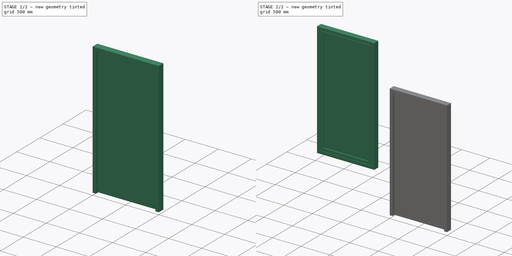
[diagram: build sequence overview — one tinted view per stage of 2, left to right]
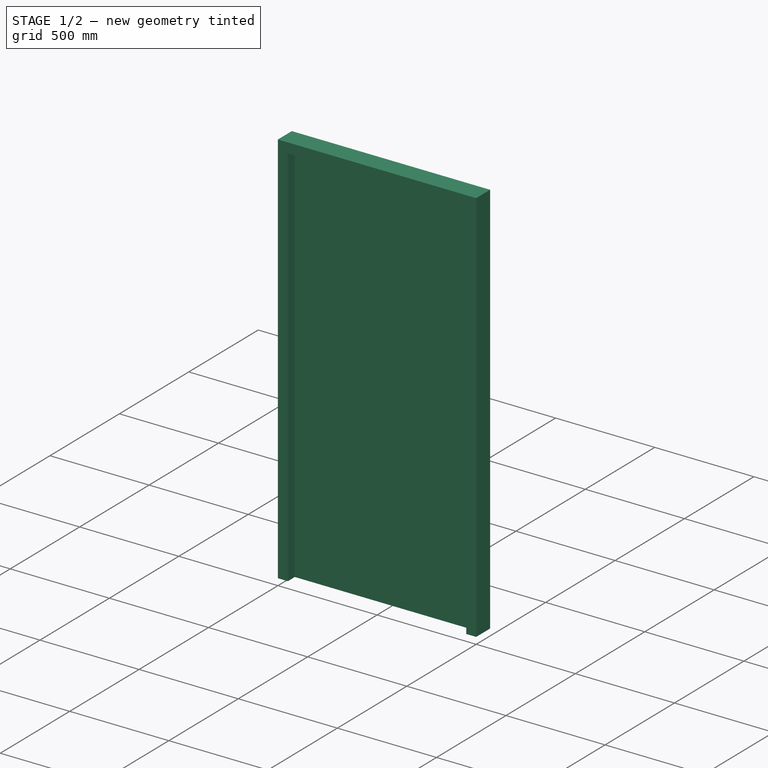
[diagram: stage 1 of 2 — iso view after this stage's code; geometry added in this stage tinted green]
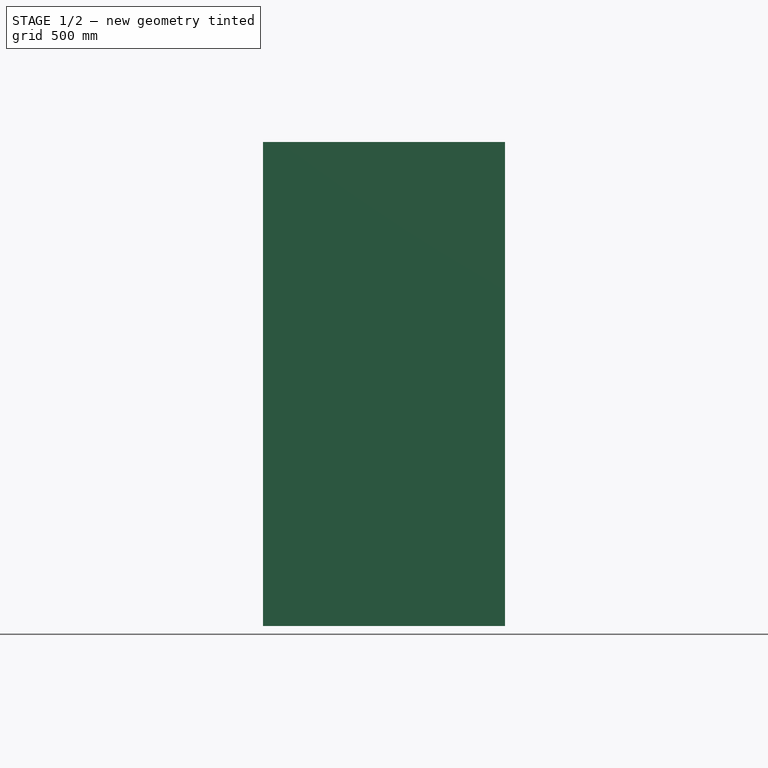
[diagram: stage 1 of 2 — front view after this stage's code; geometry added in this stage tinted green]
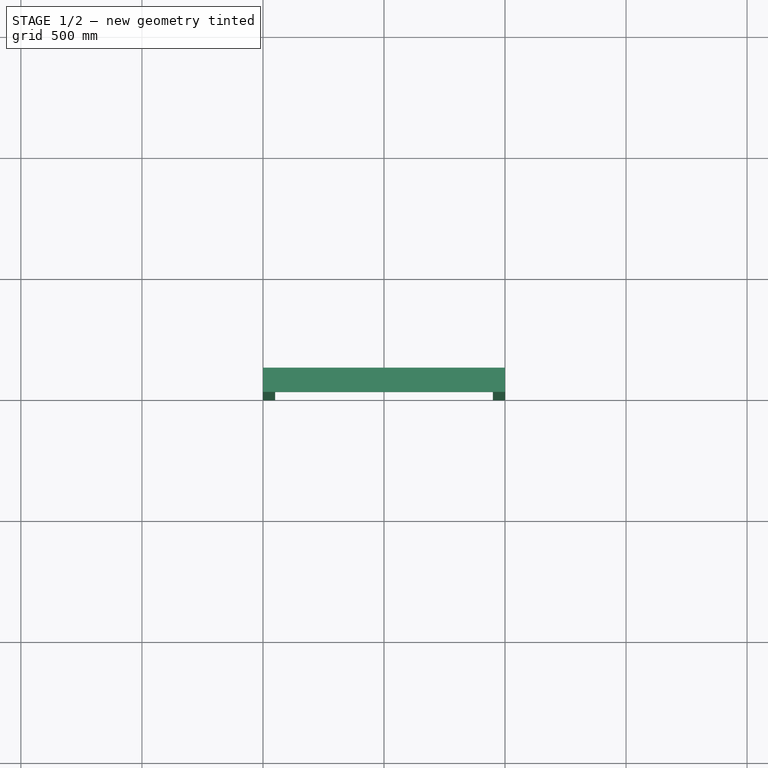
[diagram: stage 1 of 2 — top view after this stage's code; geometry added in this stage tinted green]
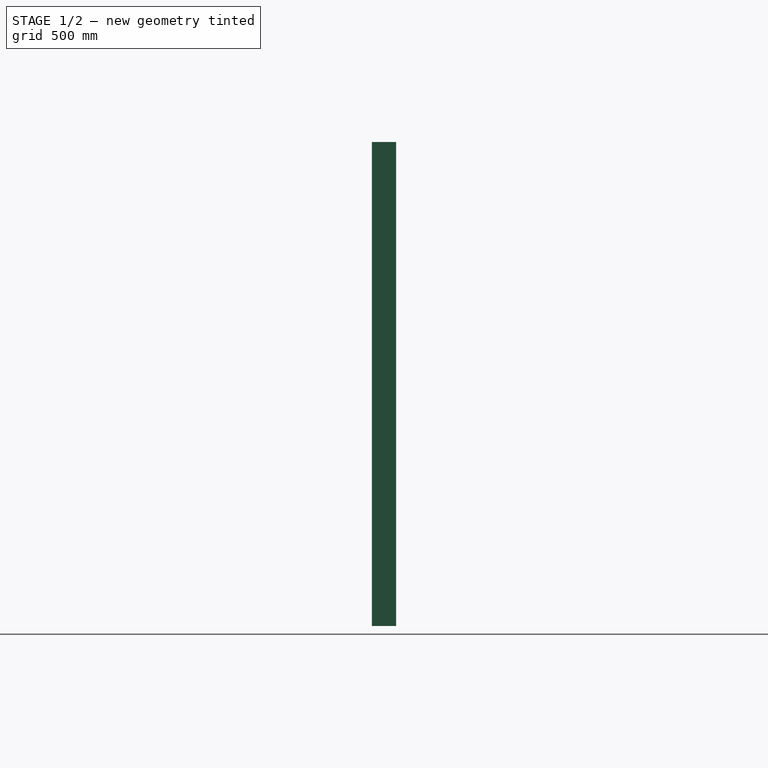
[diagram: stage 1 of 2 — right view after this stage's code; geometry added in this stage tinted green]
FCSTD DOCUMENT  (FreeCAD 0.19R)
Label: simple_wall_with_door
License: Creative Commons Attribution-ShareAlike
LicenseURL: http://creativecommons.org/licenses/by-sa/4.0/
objects: Sketcher::SketchObject×3, Part::FeaturePython×3, App::Part×1
note: 6 computed .brp shape members not serialized (recipe doc carries the construction recipe); baked Part::Feature solids carry a one-line shape summary decoded from their .brp

FEATURE [Sketcher::SketchObject] Sketch  label="wall_profile"
  FullyConstrained = true
  MapMode = 5
  Support = -> [XY_Plane]
  sketch-geometry (4):
    g0: LineSegment StartX=-1500 StartY=1000 StartZ=0 EndX=1500 EndY=1000 EndZ=0
    g1: LineSegment StartX=1500 StartY=1000 StartZ=0 EndX=1500 EndY=-1000 EndZ=0
    g2: LineSegment StartX=1500 StartY=-1000 StartZ=0 EndX=-1500 EndY=-1000 EndZ=0
    g3: LineSegment StartX=-1500 StartY=-1000 StartZ=0 EndX=-1500 EndY=1000 EndZ=0
  constraints (11):
    c: Coincident(g0,g1)
    c: Coincident(g1,g2)
    c: Coincident(g2,g3)
    c: Coincident(g3,g0)
    c: Horizontal(g0)
    c: Horizontal(g2)
    c: Vertical(g1)
    c: Vertical(g3)
    c: Symmetric(g2,g0,g-1)
    c: DistanceX(g2,g2) = 3000
    c: DistanceY(g1,g1) = 2000
FEATURE [Part::FeaturePython] Wall  # Arch/BIM 166 (typed FeaturePython)
  Align = 2
  Area = 21000000
  Base = -> Sketch
  BlockHeight = 200
  BlockLength = 300
  CountBroken = 0
  CountEntire = 0
  Face = 0
  Height = 3000
  HorizontalArea = 1600000
  IfcData = attributes={"GlobalId": {"name": "GlobalId", "type": "IfcGloballyUniqueId", "is_enum": false, "enum_values": []}, "Description": {"... (+533 chars omitted),+1 more (map truncated)
  IfcType = 166
  Joint = 0
  Length = 7000
  MakeBlocks = false
  MoveBase = false
  MoveWithHost = false
  Normal = (0,0,0)
  OffsetFirst = 0
  OffsetSecond = 0
  PerimeterLength = 14400
  PredefinedType = 0
  VerticalArea = 36800000
  Width = 200
FEATURE [Sketcher::SketchObject] Sketch002  label="door_sketch"
  FullyConstrained = true
  Placement = pos=(0,-1000,0) rot=(1,0,0;1.5708rad)
  sketch-geometry (8):
    g0: LineSegment StartX=0 StartY=0 StartZ=0 EndX=1000 EndY=0 EndZ=0
    g1: LineSegment StartX=1000 StartY=0 StartZ=0 EndX=1000 EndY=2000 EndZ=0
    g2: LineSegment StartX=1000 StartY=2000 StartZ=0 EndX=0 EndY=2000 EndZ=0
    g3: LineSegment StartX=0 StartY=2000 StartZ=0 EndX=0 EndY=0 EndZ=0
    g4: LineSegment StartX=50 StartY=0 StartZ=0 EndX=950 EndY=0 EndZ=0
    g5: LineSegment StartX=950 StartY=0 StartZ=0 EndX=950 EndY=1950 EndZ=0
    g6: LineSegment StartX=950 StartY=1950 StartZ=0 EndX=50 EndY=1950 EndZ=0
    g7: LineSegment StartX=50 StartY=1950 StartZ=0 EndX=50 EndY=0 EndZ=0
  constraints (23):
    c: Coincident(g0,g1)
    c: Coincident(g1,g2)
    c: Coincident(g2,g3)
    c: Coincident(g3,g0)
    c: Horizontal(g0)
    c: Horizontal(g2)
    c: Vertical(g1)
    c: Vertical(g3)
    c: Coincident(g4,g5)
    c: Coincident(g5,g6)
    c: Coincident(g6,g7)
    c: Coincident(g7,g4)
    c: Horizontal(g4)
    c: Horizontal(g6)
    c: Vertical(g5)
    c: Vertical(g7)
    c: DistanceY(g1) = 2000  'Height'
    c: DistanceX(g0) = 1000  'Width'
    c: DistanceY(g6,g2) = 50  'Frame1'
    c: DistanceX(g2,g6) = 50  'Frame2'
    c: DistanceX(g4,g0) = 50  'Frame3'
    c: DistanceY(g0,g4) = 0
    c: Coincident(g0,g-1)
FEATURE [Part::FeaturePython] Window001  label="Door"  # Arch/BIM 41 (typed FeaturePython)
  Area = 2000000
  Base = -> Sketch002
  Frame = 50
  Height = 2000
  HoleDepth = 0
  HoleWire = 0
  HorizontalArea = 0
  Hosts = -> [Wall]
  IfcData = attributes={"GlobalId": {"name": "GlobalId", "type": "IfcGloballyUniqueId", "is_enum": false, "enum_values": []}, "Description": {"... (+1934 chars omitted),+1 more (map truncated)
  IfcType = 41
  LouvreSpacing = 0
  LouvreWidth = 0
  MoveBase = false
  MoveWithHost = true
  Normal = (0,1,-2e-16)
  Opening = 0
  OperationType = 0
  OverallHeight = 2000
  OverallWidth = 1000
  PerimeterLength = 0
  PredefinedType = 0
  Preset = 6
  SymbolElevation = false
  SymbolPlan = false
  VerticalArea = 0
  Width = 1000
  WindowParts = OuterFrame | Frame | Wire0,Wire1 | 50.0+V | 0.00+V | Door | Solid panel | Wire1,Edge8,Mode2 | 50.0 | 50.0+V
  expr: OverallWidth = .Width.Value
  expr: OverallHeight = .Height.Value
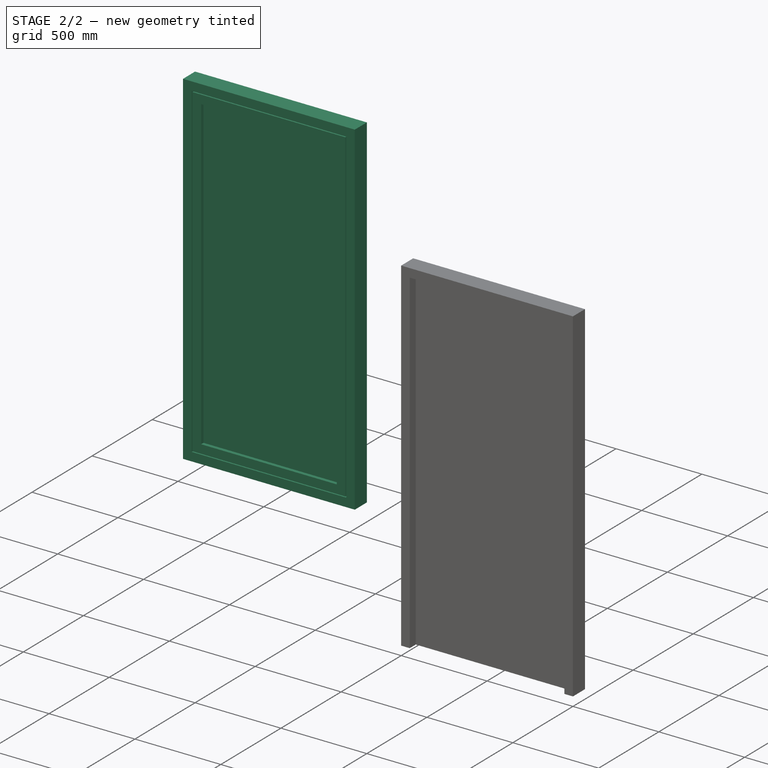
[diagram: stage 2 of 2 — iso view after this stage's code; geometry added in this stage tinted green]
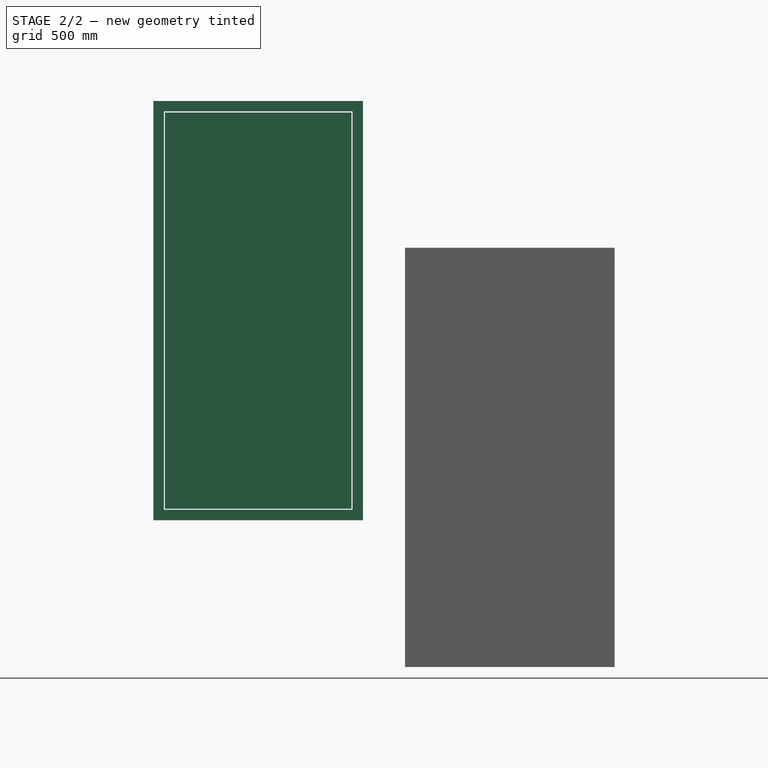
[diagram: stage 2 of 2 — front view after this stage's code; geometry added in this stage tinted green]
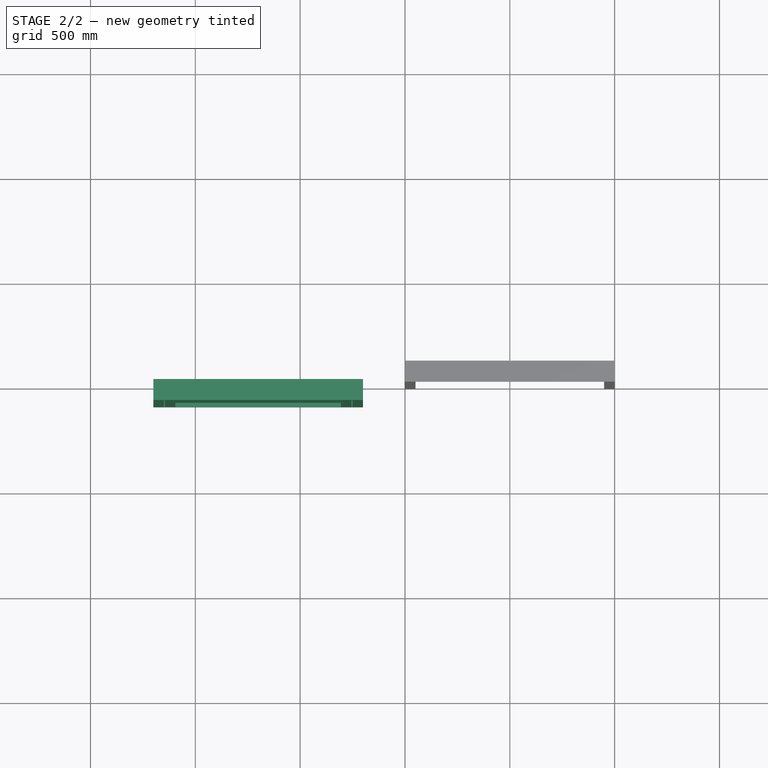
[diagram: stage 2 of 2 — top view after this stage's code; geometry added in this stage tinted green]
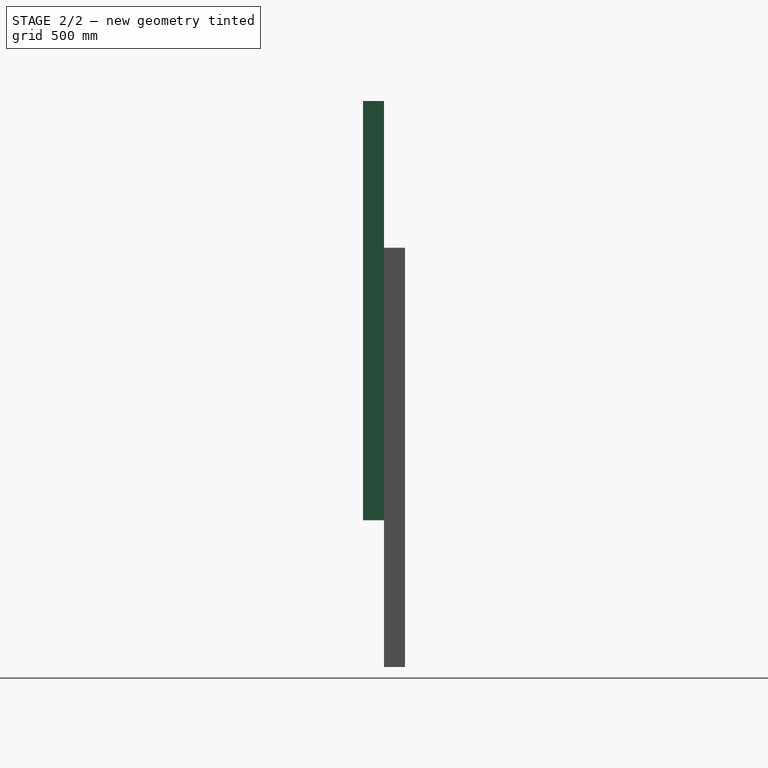
[diagram: stage 2 of 2 — right view after this stage's code; geometry added in this stage tinted green]
FEATURE [App::Part] Part  label="simple_wall_with_door"
  Group = -> [Sketch,Wall]
  Origin = -> Origin
FEATURE [Sketcher::SketchObject] Sketch001  label="window_sketch"
  FullyConstrained = true
  Placement = pos=(-200,-1000,700) rot=(0,0.707107,0.707107;3.14159rad)
  sketch-geometry (16):
    g0: LineSegment StartX=0 StartY=0 StartZ=0 EndX=1000 EndY=0 EndZ=0
    g1: LineSegment StartX=1000 StartY=0 StartZ=0 EndX=1000 EndY=2000 EndZ=0
    g2: LineSegment StartX=1000 StartY=2000 StartZ=0 EndX=0 EndY=2000 EndZ=0
    g3: LineSegment StartX=0 StartY=2000 StartZ=0 EndX=0 EndY=0 EndZ=0
    g4: LineSegment StartX=50 StartY=50 StartZ=0 EndX=950 EndY=50 EndZ=0
    g5: LineSegment StartX=950 StartY=50 StartZ=0 EndX=950 EndY=1950 EndZ=0
    g6: LineSegment StartX=950 StartY=1950 StartZ=0 EndX=50 EndY=1950 EndZ=0
    g7: LineSegment StartX=50 StartY=1950 StartZ=0 EndX=50 EndY=50 EndZ=0
    g8: LineSegment StartX=55 StartY=55 StartZ=0 EndX=945 EndY=55 EndZ=0
    g9: LineSegment StartX=945 StartY=55 StartZ=0 EndX=945 EndY=1945 EndZ=0
    g10: LineSegment StartX=945 StartY=1945 StartZ=0 EndX=55 EndY=1945 EndZ=0
    g11: LineSegment StartX=55 StartY=1945 StartZ=0 EndX=55 EndY=55 EndZ=0
    g12: LineSegment StartX=105 StartY=105 StartZ=0 EndX=895 EndY=105 EndZ=0
    g13: LineSegment StartX=895 StartY=105 StartZ=0 EndX=895 EndY=1895 EndZ=0
    g14: LineSegment StartX=895 StartY=1895 StartZ=0 EndX=105 EndY=1895 EndZ=0
    g15: LineSegment StartX=105 StartY=1895 StartZ=0 EndX=105 EndY=105 EndZ=0
  constraints (47):
    c: Coincident(g0,g1)
    c: Coincident(g1,g2)
    c: Coincident(g2,g3)
    c: Coincident(g3,g0)
    c: Horizontal(g0)
    c: Horizontal(g2)
    c: Vertical(g1)
    c: Vertical(g3)
    c: Coincident(g4,g5)
    c: Coincident(g5,g6)
    c: Coincident(g6,g7)
    c: Coincident(g7,g4)
    c: Horizontal(g4)
    c: Horizontal(g6)
    c: Vertical(g5)
    c: Vertical(g7)
    c: DistanceY(g1) = 2000  'Height'
    c: DistanceX(g0) = 1000  'Width'
    c: DistanceY(g6,g2) = 50  'Frame1'
    c: DistanceX(g2,g6) = 50  'Frame2'
    c: DistanceX(g4,g0) = 50  'Frame3'
    c: DistanceY(g0,g4) = 50  'Frame4'
    c: Coincident(g0,g-1)
    c: Coincident(g8,g9)
    c: Coincident(g9,g10)
    c: Coincident(g10,g11)
    c: Coincident(g11,g8)
    c: Horizontal(g8)
    c: Horizontal(g10)
    c: Vertical(g9)
    c: Vertical(g11)
    c: Coincident(g12,g13)
    c: Coincident(g13,g14)
    c: Coincident(g14,g15)
    c: Coincident(g15,g12)
    c: Horizontal(g12)
    c: Horizontal(g14)
    c: Vertical(g13)
    c: Vertical(g15)
    c: DistanceX(g8,g12) = 50  'Frame5'
    c: DistanceY(g8,g12) = 50  'Frame6'
    c: DistanceX(g14,g10) = 50  'Frame8'
    c: DistanceY(g14,g10) = 50  'Frame7'
    c: DistanceX(g4,g8) = 5
    c: DistanceY(g4,g8) = 5
    c: DistanceX(g10,g6) = 5
    c: DistanceY(g10,g6) = 5
FEATURE [Part::FeaturePython] Window  # Arch/BIM 170 (typed FeaturePython)
  Area = 2000000
  Base = -> Sketch001
  Frame = 50
  Height = 2000
  HoleDepth = 0
  HoleWire = 0
  HorizontalArea = 0
  Hosts = -> [Wall]
  IfcData = attributes={"GlobalId": {"name": "GlobalId", "type": "IfcGloballyUniqueId", "is_enum": false, "enum_values": []}, "Description": {"... (+1231 chars omitted),+1 more (map truncated)
  IfcType = 170
  LouvreSpacing = 0
  LouvreWidth = 0
  MoveBase = false
  MoveWithHost = true
  Normal = (0,-1,2e-16)
  Opening = 0
  OverallHeight = 2000
  OverallWidth = 1000
  PartitioningType = 0
  PerimeterLength = 0
  PredefinedType = 0
  Preset = 2
  SymbolElevation = false
  SymbolPlan = false
  VerticalArea = 0
  Width = 1000
  WindowParts = OuterFrame | Frame | Wire0,Wire1 | 50.0+V | 0.00+V | InnerFrame | Frame | Wire2,Wire3,Edge8,Mode1 | 50.0 | 50.0+V | InnerGlass | Glass panel | Wire3 | 5.0 | 75.0+V
  expr: OverallWidth = .Width.Value
  expr: OverallHeight = .Height.Value
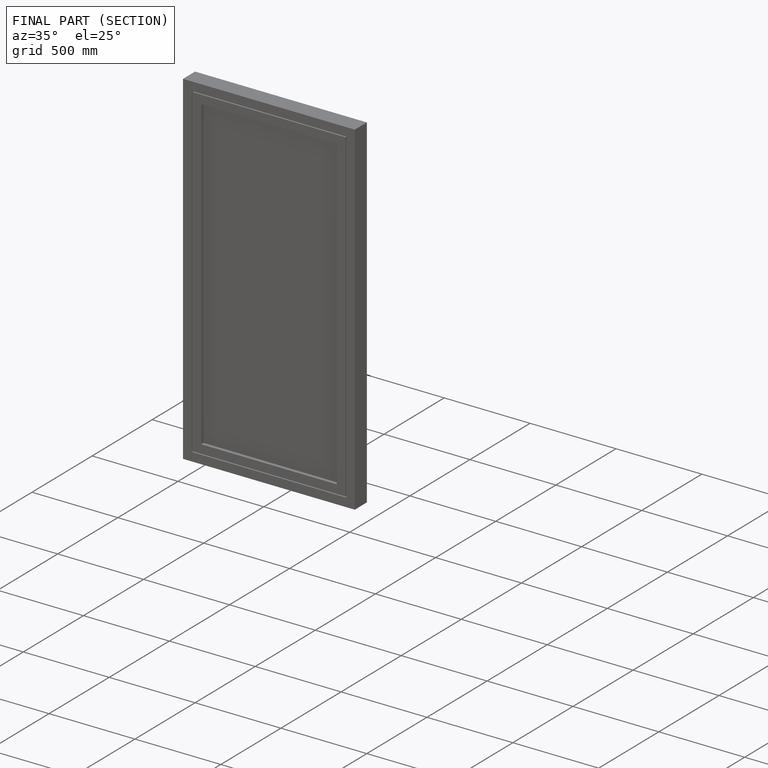
[diagram: finished part — half-section view (interior)]
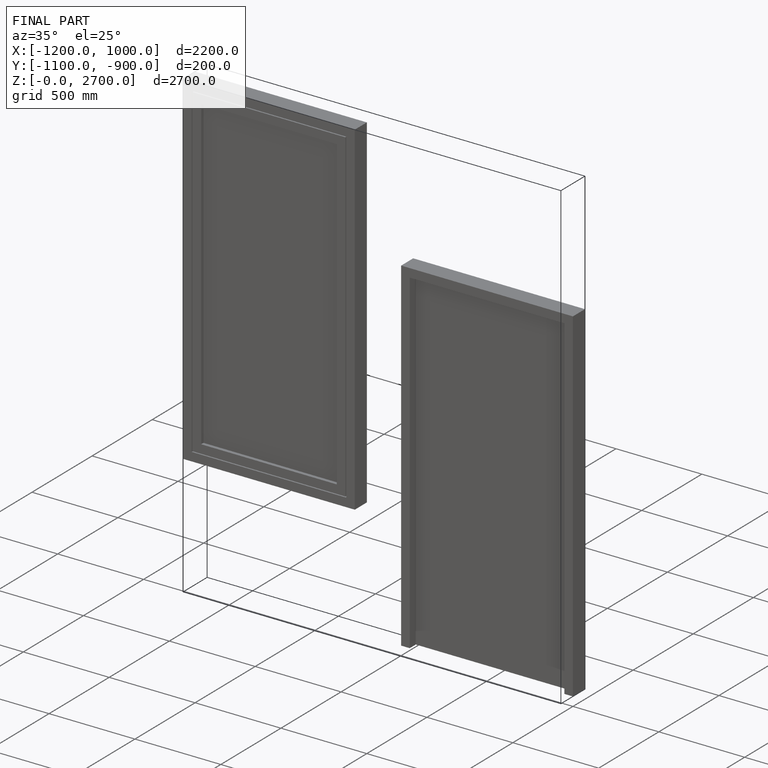
[diagram: finished part — iso view with bounding-box wireframe]
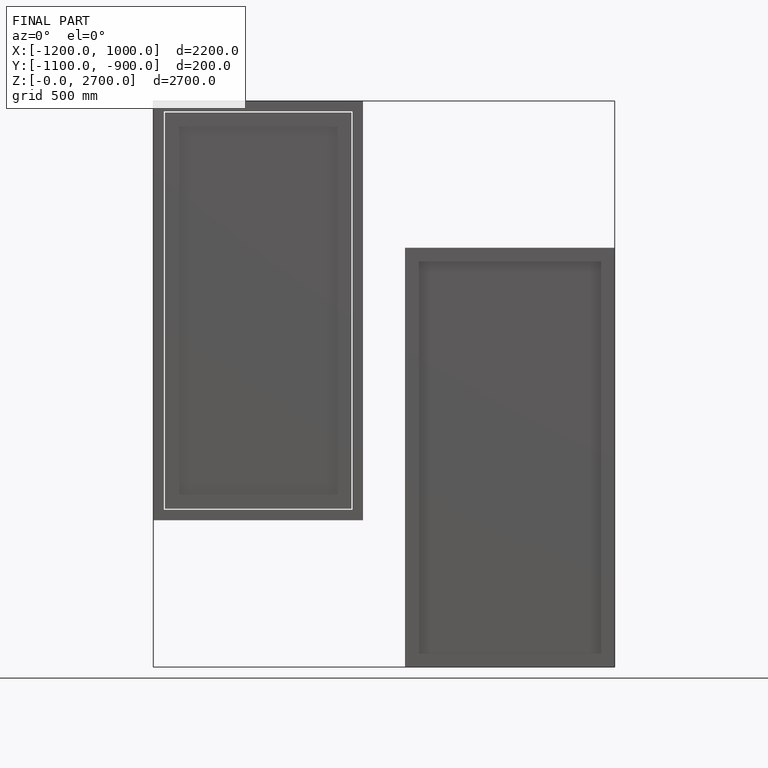
[diagram: finished part — front view with bounding-box wireframe]
